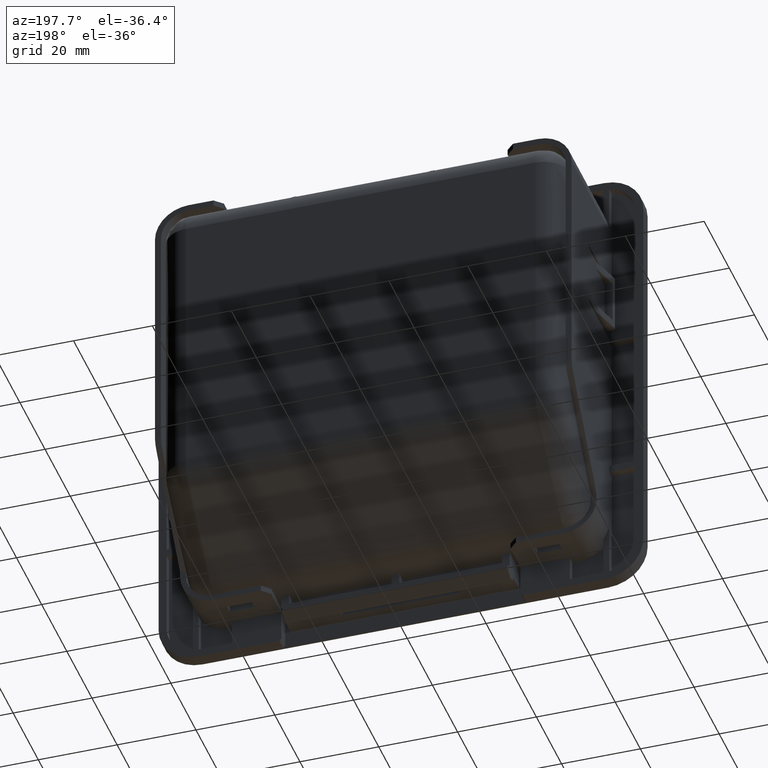
[diagram: clean part render]
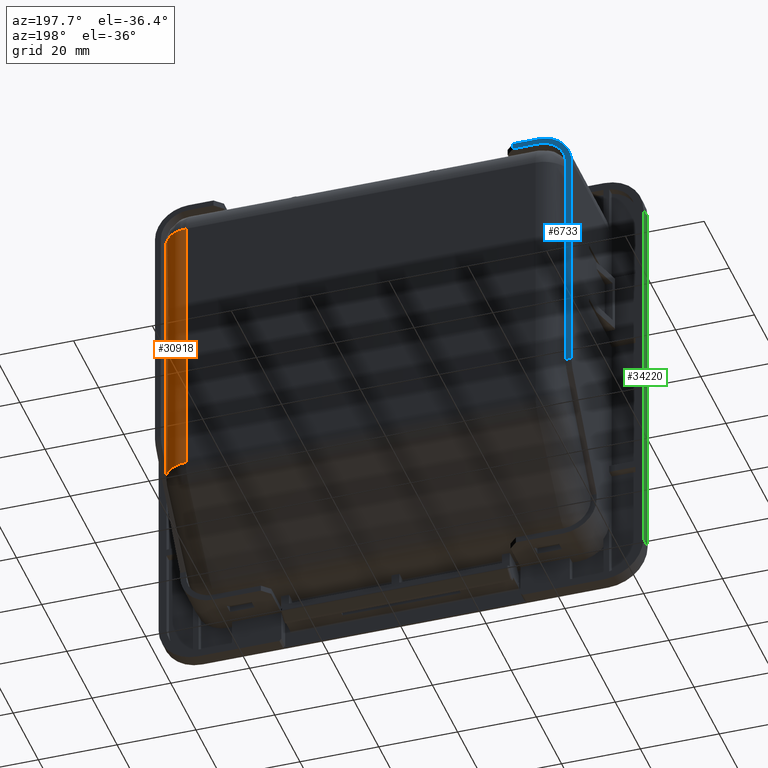
[diagram: same view with three faces highlighted in distinct colors, each labeled with its STEP entity id]
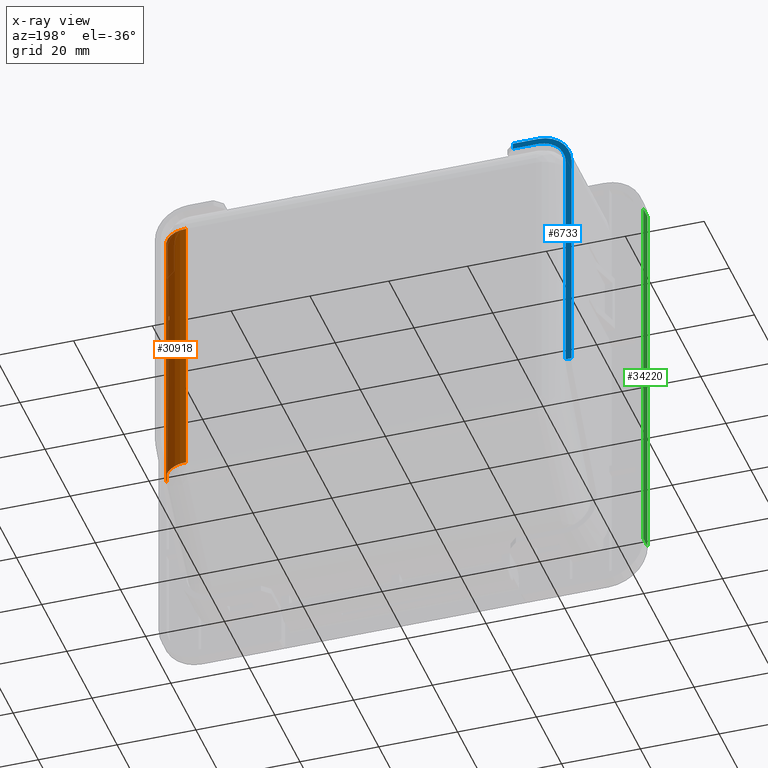
[diagram: x-ray of the same camera — body ghosted, the three highlighted faces saturated]
A machine part, auxiliary view with three faces highlighted in distinct colors.
The next image is the same camera in x-ray (body ghosted, the three faces saturated) — at least one of them is partly hidden behind the body in this view.
Their STEP definitions:

[orange] entity #30918 — the highlighted cylindrical surface (edge-blend (fillet) strip) has radius 7 mm, axis along (0, 0, -1).
#1124 = EDGE_CURVE ( 'NONE', #33459, #31021, #2833, .T. ) ;
#1793 = AXIS2_PLACEMENT_3D ( 'NONE', #33362, #13942, #36552 ) ;
#2142 = VECTOR ( 'NONE', #26490, 1000.000000000000000 ) ;
#2256 = VERTEX_POINT ( 'NONE', #24115 ) ;
#2307 = ORIENTED_EDGE ( 'NONE', *, *, #14804, .T. ) ;
#2553 = FACE_OUTER_BOUND ( 'NONE', #17560, .T. ) ;
#2833 = CIRCLE ( 'NONE', #1793, 6.999999999999999100 ) ;
#2976 = ORIENTED_EDGE ( 'NONE', *, *, #6044, .T. ) ;
#3137 = LINE ( 'NONE', #17172, #2142 ) ;
#3395 = CARTESIAN_POINT ( 'NONE',  ( 49.28299545252892200, 34.96667129513351600, 20.60000000150000300 ) ) ;
#3717 = VERTEX_POINT ( 'NONE', #23519 ) ;
#4228 = ORIENTED_EDGE ( 'NONE', *, *, #4730, .T. ) ;
#4319 = CARTESIAN_POINT ( 'NONE',  ( 49.24897948558352600, 34.99999999998318100, 9.250686647009999300 ) ) ;
#4730 = EDGE_CURVE ( 'NONE', #35923, #2256, #29908, .T. ) ;
#5056 = EDGE_CURVE ( 'NONE', #41127, #3717, #10663, .T. ) ;
#6044 = EDGE_CURVE ( 'NONE', #3717, #18158, #38863, .T. ) ;
#6220 = DIRECTION ( 'NONE',  ( -0.0000000000000000000, 0.0000000000000000000, -1.000000000000000000 ) ) ;
#6567 = DIRECTION ( 'NONE',  ( 0.0000000000000000000, 0.0000000000000000000, -1.000000000000000000 ) ) ;
#7675 = CARTESIAN_POINT ( 'NONE',  ( 51.34999999990000700, 30.00000000000113000, -22.95000001200136500 ) ) ;
#8444 = CARTESIAN_POINT ( 'NONE',  ( 44.35000000000000100, 30.00000000000000000, 9.250686647009999300 ) ) ;
#8609 = EDGE_CURVE ( 'NONE', #19456, #12101, #20029, .T. ) ;
#8638 = ORIENTED_EDGE ( 'NONE', *, *, #5056, .T. ) ;
#9281 = EDGE_CURVE ( 'NONE', #12101, #35923, #13638, .T. ) ;
#9365 = CARTESIAN_POINT ( 'NONE',  ( 51.34999999979999800, 30.00000000000000000, -29.67500001339999800 ) ) ;
#10663 = CIRCLE ( 'NONE', #41677, 6.999999999999999100 ) ;
#12101 = VERTEX_POINT ( 'NONE', #28495 ) ;
#12384 = CARTESIAN_POINT ( 'NONE',  ( 49.34999999998738900, 34.89897948558558500, 19.40000000150000000 ) ) ;
#13097 = VECTOR ( 'NONE', #6220, 1000.000000000000000 ) ;
#13488 = CARTESIAN_POINT ( 'NONE',  ( 51.34999999999999400, 30.00000000000000000, -25.79862606189999900 ) ) ;
#13638 = B_SPLINE_CURVE_WITH_KNOTS ( 'NONE', 3,
 ( #22641, #26055, #3395, #29312 ),
 .UNSPECIFIED., .F., .F.,
 ( 4, 4 ),
 ( 0.0000000000000000000, 1.000000000000000000 ),
 .UNSPECIFIED. ) ;
#13942 = DIRECTION ( 'NONE',  ( -0.0000000000000000000, -0.0000000000000000000, 1.000000000000000000 ) ) ;
#14804 = EDGE_CURVE ( 'NONE', #2256, #19456, #41104, .T. ) ;
#15016 = AXIS2_PLACEMENT_3D ( 'NONE', #8444, #21452, #34480 ) ;
#15137 = LINE ( 'NONE', #21780, #22697 ) ;
#15575 = CARTESIAN_POINT ( 'NONE',  ( 49.24897948558352600, 34.99999999998738800, 20.60000000150000300 ) ) ;
#16989 = EDGE_CURVE ( 'NONE', #31021, #41127, #15137, .T. ) ;
#17172 = CARTESIAN_POINT ( 'NONE',  ( 51.35000000000000100, 30.00000000000000000, -38.61744328689999900 ) ) ;
#17479 = CARTESIAN_POINT ( 'NONE',  ( 49.34999999998738900, 34.89897948558558500, 19.40000000150000000 ) ) ;
#17560 = EDGE_LOOP ( 'NONE', ( #29130, #33345, #8638, #2976, #37007 ) ) ;
#18158 = VERTEX_POINT ( 'NONE', #7675 ) ;
#18242 = EDGE_LOOP ( 'NONE', ( #2307, #26269, #29447, #4228 ) ) ;
#18775 = CARTESIAN_POINT ( 'NONE',  ( 44.35000000000000100, 37.00000000000000000, -25.79862606189999900 ) ) ;
#19456 = VERTEX_POINT ( 'NONE', #17479 ) ;
#20029 = LINE ( 'NONE', #37512, #37164 ) ;
#20810 = FACE_BOUND ( 'NONE', #18242, .T. ) ;
#21452 = DIRECTION ( 'NONE',  ( 0.0000000000000000000, 0.0000000000000000000, -1.000000000000000000 ) ) ;
#21780 = CARTESIAN_POINT ( 'NONE',  ( 44.35000000000000100, 37.00000000000000000, 9.250686647009999300 ) ) ;
#22641 = CARTESIAN_POINT ( 'NONE',  ( 49.34999999998738900, 34.89897948558557800, 20.60000000150000300 ) ) ;
#22697 = VECTOR ( 'NONE', #28291, 1000.000000000000000 ) ;
#23519 = CARTESIAN_POINT ( 'NONE',  ( 51.34999999984999900, 30.00000000000126800, 44.30000000150000300 ) ) ;
#24115 = CARTESIAN_POINT ( 'NONE',  ( 49.24897948558764700, 34.99999999998738800, 19.40000000150000000 ) ) ;
#24331 = CYLINDRICAL_SURFACE ( 'NONE', #15016, 6.999999999999999100 ) ;
#25973 = CARTESIAN_POINT ( 'NONE',  ( 44.35000000000000100, 30.00000000000000000, 44.30000000150000300 ) ) ;
#26055 = CARTESIAN_POINT ( 'NONE',  ( 49.31667129513351700, 34.93299545252891400, 20.60000000150000300 ) ) ;
#26269 = ORIENTED_EDGE ( 'NONE', *, *, #8609, .T. ) ;
#26490 = DIRECTION ( 'NONE',  ( 0.0000000000000000000, -0.0000000000000000000, 1.000000000000000000 ) ) ;
#28291 = DIRECTION ( 'NONE',  ( -0.0000000000000000000, -0.0000000000000000000, 1.000000000000000000 ) ) ;
#28495 = CARTESIAN_POINT ( 'NONE',  ( 49.34999999998738900, 34.89897948558557800, 20.60000000150000300 ) ) ;
#29130 = ORIENTED_EDGE ( 'NONE', *, *, #1124, .T. ) ;
#29224 = DIRECTION ( 'NONE',  ( -1.000000000000000000, 0.0000000000000000000, 0.0000000000000000000 ) ) ;
#29312 = CARTESIAN_POINT ( 'NONE',  ( 49.24897948558352600, 34.99999999998738800, 20.60000000150000300 ) ) ;
#29447 = ORIENTED_EDGE ( 'NONE', *, *, #9281, .T. ) ;
#29908 = LINE ( 'NONE', #4319, #37434 ) ;
#30918 = ADVANCED_FACE ( 'NONE', ( #20810, #2553 ), #24331, .T. ) ;
#31021 = VERTEX_POINT ( 'NONE', #18775 ) ;
#31055 = DIRECTION ( 'NONE',  ( -0.0000000000000000000, -0.0000000000000000000, 1.000000000000000000 ) ) ;
#31788 = CARTESIAN_POINT ( 'NONE',  ( 49.31667129513351700, 34.93299545252892100, 19.40000000150000000 ) ) ;
#32729 = CARTESIAN_POINT ( 'NONE',  ( 44.34999999995000100, 37.00000000000000000, 44.30000000167173400 ) ) ;
#33345 = ORIENTED_EDGE ( 'NONE', *, *, #16989, .T. ) ;
#33362 = CARTESIAN_POINT ( 'NONE',  ( 44.35000000000000100, 30.00000000000000000, -25.79862606190000200 ) ) ;
#33459 = VERTEX_POINT ( 'NONE', #13488 ) ;
#34480 = DIRECTION ( 'NONE',  ( -1.000000000000000000, 0.0000000000000000000, 0.0000000000000000000 ) ) ;
#34904 = CARTESIAN_POINT ( 'NONE',  ( 49.24897948558764700, 34.99999999998738800, 19.40000000150000000 ) ) ;
#35923 = VERTEX_POINT ( 'NONE', #15575 ) ;
#36552 = DIRECTION ( 'NONE',  ( -1.000000000000000000, 0.0000000000000000000, 0.0000000000000000000 ) ) ;
#36705 = DIRECTION ( 'NONE',  ( 0.0000000000000000000, 0.0000000000000000000, -1.000000000000000000 ) ) ;
#37007 = ORIENTED_EDGE ( 'NONE', *, *, #37494, .F. ) ;
#37164 = VECTOR ( 'NONE', #31055, 1000.000000000000000 ) ;
#37434 = VECTOR ( 'NONE', #36705, 1000.000000000000000 ) ;
#37494 = EDGE_CURVE ( 'NONE', #33459, #18158, #3137, .T. ) ;
#37512 = CARTESIAN_POINT ( 'NONE',  ( 49.34999999998318300, 34.89897948558352400, 9.250686647009999300 ) ) ;
#38086 = CARTESIAN_POINT ( 'NONE',  ( 49.28299545252892200, 34.96667129513351600, 19.40000000150000000 ) ) ;
#38863 = LINE ( 'NONE', #9365, #13097 ) ;
#41104 = B_SPLINE_CURVE_WITH_KNOTS ( 'NONE', 3,
 ( #34904, #38086, #31788, #12384 ),
 .UNSPECIFIED., .F., .F.,
 ( 4, 4 ),
 ( 0.0000000000000000000, 1.000000000000000000 ),
 .UNSPECIFIED. ) ;
#41127 = VERTEX_POINT ( 'NONE', #32729 ) ;
#41677 = AXIS2_PLACEMENT_3D ( 'NONE', #25973, #6567, #29224 ) ;

[blue] entity #6733 — the highlighted planar face has unit normal (0, -1, 0).
#473 = ORIENTED_EDGE ( 'NONE', *, *, #25408, .F. ) ;
#1141 = VERTEX_POINT ( 'NONE', #7580 ) ;
#1224 = VERTEX_POINT ( 'NONE', #33757 ) ;
#2003 = CARTESIAN_POINT ( 'NONE',  ( -52.85000000000000100, 35.00000000000000000, -14.94609470199999800 ) ) ;
#2572 = EDGE_CURVE ( 'NONE', #40673, #18608, #41054, .T. ) ;
#5125 = LINE ( 'NONE', #10747, #21350 ) ;
#5186 = CARTESIAN_POINT ( 'NONE',  ( -52.85000000000000100, 35.00000000000000000, 66.88527107980000600 ) ) ;
#6279 = LINE ( 'NONE', #5186, #22474 ) ;
#6289 = EDGE_LOOP ( 'NONE', ( #26617, #22163, #14727, #473, #25939, #7844, #11808, #27154 ) ) ;
#6733 = ADVANCED_FACE ( 'NONE', ( #22592 ), #10783, .F. ) ;
#7580 = CARTESIAN_POINT ( 'NONE',  ( -51.34999999979999800, 35.00000000000000000, -14.94609470200000000 ) ) ;
#7844 = ORIENTED_EDGE ( 'NONE', *, *, #10758, .F. ) ;
#7865 = CARTESIAN_POINT ( 'NONE',  ( -44.35000000000000100, 35.00000000000613900, 44.30000000151154200 ) ) ;
#8204 = CARTESIAN_POINT ( 'NONE',  ( -54.33500000000000100, 35.00000000000000000, 51.30000000150001000 ) ) ;
#8442 = CARTESIAN_POINT ( 'NONE',  ( -51.16780873648065900, 35.00000000000376600, 46.13223519201702800 ) ) ;
#8993 = CIRCLE ( 'NONE', #32350, 8.500000000000000000 ) ;
#9273 = VERTEX_POINT ( 'NONE', #19420 ) ;
#9295 = CARTESIAN_POINT ( 'NONE',  ( -37.99999999999995000, 35.00000000000005000, 51.30000000149988900 ) ) ;
#9684 = LINE ( 'NONE', #26842, #18314 ) ;
#10747 = CARTESIAN_POINT ( 'NONE',  ( -51.34999999979999800, 35.00000000000000000, 59.57460947189999700 ) ) ;
#10758 = EDGE_CURVE ( 'NONE', #24079, #18608, #39960, .T. ) ;
#10783 = PLANE ( 'NONE',  #25010 ) ;
#11053 = DIRECTION ( 'NONE',  ( 0.0000000000000000000, -1.000000000000000000, 0.0000000000000000000 ) ) ;
#11153 = DIRECTION ( 'NONE',  ( 0.0000000000000000000, 7.208286255470685800E-013, -1.000000000000000000 ) ) ;
#11704 = CARTESIAN_POINT ( 'NONE',  ( -49.94766789659117700, 35.00000000000196800, 48.60182704133021000 ) ) ;
#11808 = ORIENTED_EDGE ( 'NONE', *, *, #29596, .F. ) ;
#13947 = DIRECTION ( 'NONE',  ( -0.0000000000000000000, 0.0000000000000000000, 1.000000000000000000 ) ) ;
#14727 = ORIENTED_EDGE ( 'NONE', *, *, #17704, .F. ) ;
#14952 = CARTESIAN_POINT ( 'NONE',  ( -47.87533286239944600, 35.00000000000064700, 50.41650471998883600 ) ) ;
#16296 = VECTOR ( 'NONE', #28089, 1000.000000000000000 ) ;
#17704 = EDGE_CURVE ( 'NONE', #9273, #24589, #8993, .T. ) ;
#17986 = DIRECTION ( 'NONE',  ( 1.000000000000000000, 0.0000000000000000000, 0.0000000000000000000 ) ) ;
#18223 = CARTESIAN_POINT ( 'NONE',  ( -45.26629785709792500, 35.00000000000000700, 51.30000000151070300 ) ) ;
#18314 = VECTOR ( 'NONE', #29957, 1000.000000000000000 ) ;
#18608 = VERTEX_POINT ( 'NONE', #9295 ) ;
#19420 = CARTESIAN_POINT ( 'NONE',  ( -44.35000000000000100, 35.00000000000000000, 52.80000000150576500 ) ) ;
#21350 = VECTOR ( 'NONE', #13947, 1000.000000000000000 ) ;
#22163 = ORIENTED_EDGE ( 'NONE', *, *, #23878, .T. ) ;
#22474 = VECTOR ( 'NONE', #24611, 1000.000000000000000 ) ;
#22592 = FACE_OUTER_BOUND ( 'NONE', #6289, .T. ) ;
#23815 = VECTOR ( 'NONE', #17986, 1000.000000000000000 ) ;
#23878 = EDGE_CURVE ( 'NONE', #38915, #24589, #6279, .T. ) ;
#24079 = VERTEX_POINT ( 'NONE', #39067 ) ;
#24580 = CARTESIAN_POINT ( 'NONE',  ( -51.34999999979999800, 35.00000000000127200, 44.30000000150000300 ) ) ;
#24589 = VERTEX_POINT ( 'NONE', #36237 ) ;
#24611 = DIRECTION ( 'NONE',  ( -0.0000000000000000000, -0.0000000000000000000, 1.000000000000000000 ) ) ;
#25010 = AXIS2_PLACEMENT_3D ( 'NONE', #30403, #11053, #33657 ) ;
#25408 = EDGE_CURVE ( 'NONE', #40673, #9273, #9684, .T. ) ;
#25939 = ORIENTED_EDGE ( 'NONE', *, *, #2572, .T. ) ;
#26617 = ORIENTED_EDGE ( 'NONE', *, *, #27332, .F. ) ;
#26842 = CARTESIAN_POINT ( 'NONE',  ( -54.33500000000000100, 35.00000000000000000, 52.80000000150000300 ) ) ;
#27154 = ORIENTED_EDGE ( 'NONE', *, *, #34515, .F. ) ;
#27332 = EDGE_CURVE ( 'NONE', #38915, #1141, #36513, .T. ) ;
#27835 = CARTESIAN_POINT ( 'NONE',  ( -51.34999999980140500, 35.00000000000442000, 45.21629785879791500 ) ) ;
#27949 = VECTOR ( 'NONE', #38021, 1000.000000000000000 ) ;
#28089 = DIRECTION ( 'NONE',  ( 0.0000000000000000000, -0.0000000000000000000, -1.000000000000000000 ) ) ;
#28316 = CARTESIAN_POINT ( 'NONE',  ( -54.33500000000000100, 35.00000000000000000, -14.94609470200000000 ) ) ;
#29596 = EDGE_CURVE ( 'NONE', #1224, #24079, #38946, .T. ) ;
#29957 = DIRECTION ( 'NONE',  ( -1.000000000000000000, -0.0000000000000000000, -0.0000000000000000000 ) ) ;
#30211 = CARTESIAN_POINT ( 'NONE',  ( -37.99999999999995000, 35.00000000000005000, 52.80000000150846500 ) ) ;
#30403 = CARTESIAN_POINT ( 'NONE',  ( -54.33500000000000100, 35.00000000000000000, 59.57460947189999700 ) ) ;
#30503 = DIRECTION ( 'NONE',  ( 0.0000000000000000000, -1.000000000000000000, -7.211823730789999700E-013 ) ) ;
#31073 = CARTESIAN_POINT ( 'NONE',  ( -50.46650471828348800, 35.00000000000251500, 47.82533286410079400 ) ) ;
#32350 = AXIS2_PLACEMENT_3D ( 'NONE', #7865, #30503, #11153 ) ;
#33657 = DIRECTION ( 'NONE',  ( 0.0000000000000000000, -0.0000000000000000000, -1.000000000000000000 ) ) ;
#33757 = CARTESIAN_POINT ( 'NONE',  ( -51.34999999979999800, 35.00000000000127200, 44.30000000150000300 ) ) ;
#34342 = CARTESIAN_POINT ( 'NONE',  ( -48.65182703962806000, 35.00000000000102300, 49.89766789829530300 ) ) ;
#34515 = EDGE_CURVE ( 'NONE', #1141, #1224, #5125, .T. ) ;
#34729 = CARTESIAN_POINT ( 'NONE',  ( -37.99999999999985800, 35.00000000000014200, 52.95000000150000800 ) ) ;
#36237 = CARTESIAN_POINT ( 'NONE',  ( -52.85000000000000100, 35.00000000000307000, 44.30000000150577200 ) ) ;
#36513 = LINE ( 'NONE', #28316, #27949 ) ;
#37530 = CARTESIAN_POINT ( 'NONE',  ( -46.18223519031674600, 35.00000000000014200, 51.11780873818855000 ) ) ;
#38021 = DIRECTION ( 'NONE',  ( 1.000000000000000000, 0.0000000000000000000, 0.0000000000000000000 ) ) ;
#38915 = VERTEX_POINT ( 'NONE', #2003 ) ;
#38946 = B_SPLINE_CURVE_WITH_KNOTS ( 'NONE', 3,
 ( #24580, #27835, #8442, #31073, #11704, #34342, #14952, #37530, #18223, #40793 ),
 .UNSPECIFIED., .F., .F.,
 ( 4, 2, 2, 2, 4 ),
 ( 0.0000000000000000000, 0.2500000000000000000, 0.5000000000000000000, 0.7500000000000000000, 1.000000000000000000 ),
 .UNSPECIFIED. ) ;
#39067 = CARTESIAN_POINT ( 'NONE',  ( -44.34999999979999800, 35.00000000000000000, 51.30000000150258900 ) ) ;
#39960 = LINE ( 'NONE', #8204, #23815 ) ;
#40673 = VERTEX_POINT ( 'NONE', #30211 ) ;
#40793 = CARTESIAN_POINT ( 'NONE',  ( -44.34999999979999800, 35.00000000000000000, 51.30000000150258900 ) ) ;
#41054 = LINE ( 'NONE', #34729, #16296 ) ;

[green] entity #34220 — the highlighted planar face has unit normal (-1, 0, 0).
#455 = LINE ( 'NONE', #12988, #17702 ) ;
#794 = VECTOR ( 'NONE', #8695, 1000.000000000000000 ) ;
#2239 = DIRECTION ( 'NONE',  ( 0.0000000000000000000, 0.0000000000000000000, 1.000000000000000000 ) ) ;
#3707 = DIRECTION ( 'NONE',  ( -0.0000000000000000000, -0.0000000000000000000, -1.000000000000000000 ) ) ;
#4242 = CARTESIAN_POINT ( 'NONE',  ( -61.49999999989356100, 1.624264068710000300, -49.99999999989999800 ) ) ;
#5426 = CARTESIAN_POINT ( 'NONE',  ( -61.49999999990000500, 1.624264068710000300, -0.5000000000000000000 ) ) ;
#6424 = VERTEX_POINT ( 'NONE', #18835 ) ;
#7108 = ORIENTED_EDGE ( 'NONE', *, *, #11997, .F. ) ;
#7979 = EDGE_CURVE ( 'NONE', #6424, #22215, #9415, .T. ) ;
#8695 = DIRECTION ( 'NONE',  ( -0.0000000000000000000, 0.0000000000000000000, -1.000000000000000000 ) ) ;
#9415 = LINE ( 'NONE', #5426, #794 ) ;
#11046 = EDGE_CURVE ( 'NONE', #17513, #22215, #455, .T. ) ;
#11997 = EDGE_CURVE ( 'NONE', #24533, #6424, #18073, .T. ) ;
#12988 = CARTESIAN_POINT ( 'NONE',  ( -61.49999999990000500, 1.286690475579999900, -49.99999999989999800 ) ) ;
#16072 = ORIENTED_EDGE ( 'NONE', *, *, #11046, .T. ) ;
#17513 = VERTEX_POINT ( 'NONE', #26564 ) ;
#17702 = VECTOR ( 'NONE', #38669, 1000.000000000000000 ) ;
#18051 = EDGE_CURVE ( 'NONE', #24533, #17513, #27694, .T. ) ;
#18073 = LINE ( 'NONE', #40369, #34259 ) ;
#18080 = VECTOR ( 'NONE', #3707, 1000.000000000000000 ) ;
#18835 = CARTESIAN_POINT ( 'NONE',  ( -61.49999999987656500, 1.624264068710000300, 49.00000000150000500 ) ) ;
#21630 = DIRECTION ( 'NONE',  ( -1.000000000000000000, 0.0000000000000000000, 0.0000000000000000000 ) ) ;
#21774 = EDGE_LOOP ( 'NONE', ( #7108, #34163, #16072, #26855 ) ) ;
#22215 = VERTEX_POINT ( 'NONE', #4242 ) ;
#24533 = VERTEX_POINT ( 'NONE', #25943 ) ;
#25943 = CARTESIAN_POINT ( 'NONE',  ( -61.49999999990000500, 5.000000000000000000, 49.00000000149999800 ) ) ;
#26564 = CARTESIAN_POINT ( 'NONE',  ( -61.49999999990000500, 5.000000000000000000, -49.99999999989999800 ) ) ;
#26855 = ORIENTED_EDGE ( 'NONE', *, *, #7979, .F. ) ;
#27694 = LINE ( 'NONE', #35967, #18080 ) ;
#28010 = PLANE ( 'NONE',  #40057 ) ;
#34163 = ORIENTED_EDGE ( 'NONE', *, *, #18051, .T. ) ;
#34220 = ADVANCED_FACE ( 'NONE', ( #38520 ), #28010, .T. ) ;
#34259 = VECTOR ( 'NONE', #37094, 1000.000000000000000 ) ;
#35967 = CARTESIAN_POINT ( 'NONE',  ( -61.49999999990000500, 5.000000000000000000, -59.89999999999999900 ) ) ;
#37094 = DIRECTION ( 'NONE',  ( 0.0000000000000000000, -1.000000000000000000, -0.0000000000000000000 ) ) ;
#38520 = FACE_OUTER_BOUND ( 'NONE', #21774, .T. ) ;
#38669 = DIRECTION ( 'NONE',  ( -0.0000000000000000000, -1.000000000000000000, 0.0000000000000000000 ) ) ;
#40057 = AXIS2_PLACEMENT_3D ( 'NONE', #40974, #21630, #2239 ) ;
#40369 = CARTESIAN_POINT ( 'NONE',  ( -61.49999999990000500, 3.312132060530000600, 49.00000000149999800 ) ) ;
#40974 = CARTESIAN_POINT ( 'NONE',  ( -61.49999999990000500, 1.286690475579999900, -59.89999999999999900 ) ) ;